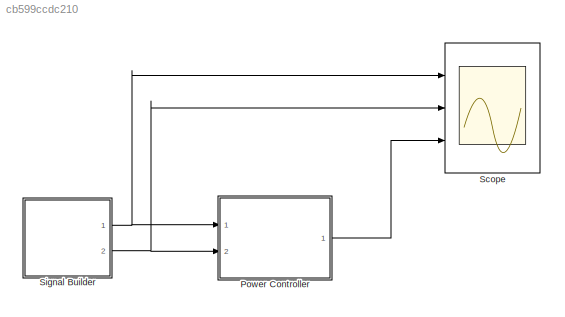
MODEL slx_cb599ccdc210
KIND model
CONFIG AbsTol = auto
CONFIG EnableMultiTasking = off
CONFIG FixedStep = auto
CONFIG MaxStep = auto
CONFIG MinStep = auto
CONFIG RelTol = 1e-3
CONFIG SampleTimeConstraint = Unconstrained
CONFIG SolverName = VariableStepAuto
CONFIG StartTime = 0.0
CONFIG StopTime = 60
WORKSPACE source: mxarray member
WORKSPACE courseObject: object (value not decoded)
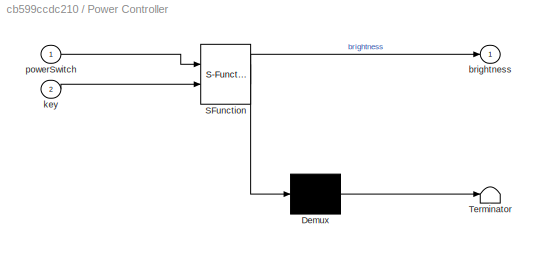
BLOCK [SubSystem] Power Controller
  ErrorFcn = Stateflow.Translate.translate
  PermitHierarchicalResolution = ExplicitOnly
  Ports = [2, 1]
  RequestExecContextInheritance = off
  SFBlockType = Chart
  TreatAsAtomicUnit = on
BLOCK [Demux] Power Controller/ Demux 
  Outputs = 1
  Ports = [1, 1]
BLOCK [S-Function] Power Controller/ SFunction 
  EnableBusSupport = on
  FunctionName = sf_sfun
  PortCounts = [2 2]
  Ports = [2, 2]
  SFcnIsStateOwnerBlock = off
  SFunctionDeploymentMode = off
  Tag = Stateflow S-Function 3
BLOCK [Terminator] Power Controller/ Terminator 
BLOCK [Outport] Power Controller/brightness
BLOCK [Inport] Power Controller/key
  Port = 2
BLOCK [Inport] Power Controller/powerSwitch
BLOCK [Scope] Scope
  Floating = off
  NumInputPorts = 3
  Ports = [3]
  ScopeSpecificationString = Simulink.scopes.TimeScopeBlockCfg('CurrentConfiguration', extmgr.ConfigurationSet(extmgr.Configuration('Core','General UI',true),extmgr.Configuration('Core','Source UI',true),extmgr.Configuration('Sources','WiredSimulink',true),extmgr.Configuration('Visuals','Time Domain',true,'SerializedDisplays',{struct('MinYLimReal','-0.125','MaxYLimReal','1.125','YLabelReal','','MinYLimMag','0.00000','MaxYLimM...<+3237ch>
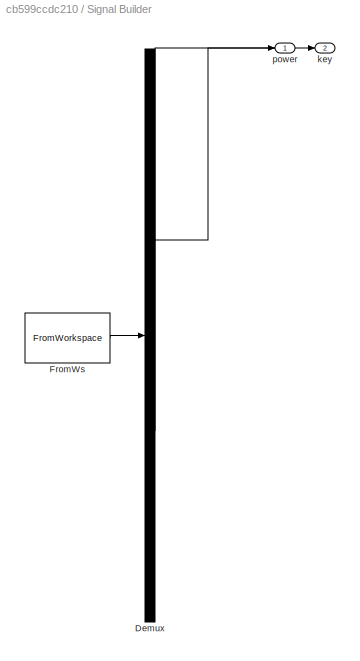
BLOCK [SubSystem] Signal Builder
  ClipboardFcn = sigbuilder_block('clipboard');
  CloseFcn = sigbuilder_block('close');
  ContinueFcn = sigbuilder_block('continue');
  CopyFcn = sigbuilder_block('copy');
  DeleteFcn = sigbuilder_block('delete');
  LoadFcn = sigbuilder_block('load');
  MaskHideContents = on
  ModelCloseFcn = sigbuilder_block('modelClose');
  NameChangeFcn = sigbuilder_block('namechange');
  OpenFcn = sigbuilder_block('open',[4.8 22.8 1142.4 538.8 ]);
  PauseFcn = sigbuilder_block('pause');
  Ports = [0, 2]
  PreSaveFcn = sigbuilder_block('preSave');
  RequestExecContextInheritance = off
  StartFcn = sigbuilder_block('start');
  StopFcn = sigbuilder_block('stop');
  Tag = STV Subsys
BLOCK [Demux] Signal Builder/Demux
  DisplayOption = none
  Outputs = 2
  Ports = [1, 2]
  Tag = STV Demux
BLOCK [FromWorkspace] Signal Builder/FromWs
  Tag = STV FromWs
  VariableName = tuvar
BLOCK [Outport] Signal Builder/key
  Port = 2
  Tag = STV Outport
BLOCK [Outport] Signal Builder/power
  Tag = STV Outport
LINE Power Controller:1 -> Scope:3
NET Signal Builder:1 -> Power Controller:1, Scope:1
NET Signal Builder:2 -> Power Controller:2, Scope:2
note: NET lines group one-source signal fan-out (src -> all destinations, sorted); 1:1 wires keep LINE
CHART Power Controller states=6 transitions=9
  STATE_LABEL 'laptop'
  STATE_LABEL 'machineOff\nentry:\nbrightness = 0;\n'
  STATE_LABEL 'mahinceOn'
  STATE_LABEL 'fullBrightness\nentry:\nbrightness = 1;\n'
  STATE_LABEL 'halfBrightness\nentry:\nbrightness = 0.5'
  STATE_LABEL 'screenOff\nentry:\nbrightness = 0;'
  STATE_LABEL 'after(3,sec)'
  STATE_LABEL '[key == 1]'
  STATE_LABEL '[key == 1]'
  STATE_LABEL 'after(3,sec)'
  STATE_LABEL '[powerSwitch == 1]'
  STATE_LABEL '[powerSwitch == 0]'
  STATE_LABEL 'machineOff\nentry:\nbrightness = 0;\n'
  STATE_LABEL 'mahinceOn'
  STATE_LABEL 'fullBrightness\nentry:\nbrightness = 1;\n'
  STATE_LABEL 'halfBrightness\nentry:\nbrightness = 0.5'
  STATE_LABEL 'screenOff\nentry:\nbrightness = 0;'
  STATE_LABEL 'after(3,sec)'
  STATE_LABEL '[key == 1]'
  STATE_LABEL '[key == 1]'
  STATE_LABEL 'after(3,sec)'
  STATE_LABEL 'fullBrightness\nentry:\nbrightness = 1;\n'
  STATE_LABEL 'halfBrightness\nentry:\nbrightness = 0.5'
  STATE_LABEL 'screenOff\nentry:\nbrightness = 0;'
CHART  states=0 transitions=0
